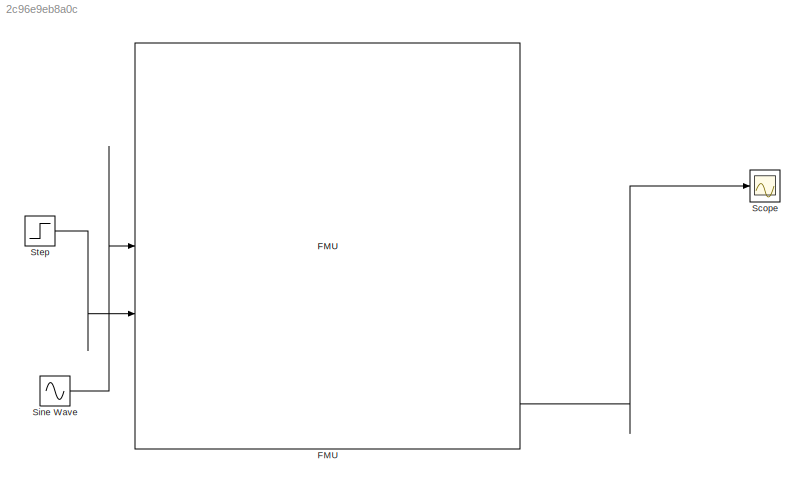
MODEL slx_2c96e9eb8a0c
KIND model
CONFIG AbsTol = auto
CONFIG EnableMultiTasking = off
CONFIG FixedStep = auto
CONFIG MaxStep = auto
CONFIG MinStep = auto
CONFIG RelTol = 1e-3
CONFIG SampleTimeConstraint = Unconstrained
CONFIG SolverName = VariableStepAuto
CONFIG StartTime = 0.0
CONFIG StopTime = 10.0
BLOCK [FMU] FMU
  FMUCachedDialogLayout = {"Geometry":[637,302,440,418],"ParameterColumnsWidthConfig":"{\"columns\":[{\"name\":\"Parameter\",\"width\":146},{\"name\":\"Value\",\"width\":110},{\"name\":\"Unit\",\"width\":100},{\"name\":\"Description\",\"width\":153}]}","InputColumnsWidthConfig":[],"OutputColumnsWidthConfig":[]}
  FMUInitializeEnumObject = off
  FMUMode = ModelExchange
  FMUName = ThreeWheelVehicleNoDiffFMU.fmu
  MaskDisplay = disp('ThreeWheelVehicleNoDiffFMU');\nport_label('output',1,'outActualSteeringAngle');\nport_label('output',2,'outCarAcc');\nport_label('output',3,'outCarAngle');\nport_label('output',4,'outCarAngularAcc');\nport_label('output',5,'outCarAngularVelocity');\nport_label('output',6,'outCarDistance');\nport_label('output',7,'outCarPosition');\nport_label('output',8,'outCarSpeed');\nport_label('output',9,'outCarV...<+894ch>
  MaskPromptString = airResistanceLongitudinal|backLengthm|body2|c_rollRolling resistance|dragCoefAir drag coefficient|front|front2|frontLengthm|frontTrail|frontWheel|gm/s2 Gravity|gearRatio|inertiaBodykgm2|inertiaWheel|masskg|massCenterZm height to COM|muA|muS|neg|neg2|planarWorld|positionPhi|rear|rearLeft|rearLeftWheel|rearRight|rearRightWheel|sAd|sSl|speedStartm/s|turnRadiusMAX|vAd|vSl|vehicleFrontAream2, for air r...<+2558ch>
  MaskType = ThreeWheelVehicleNoDiffFMU [Model Exchange, v2.0]
  MultithreadedSim = off
  airResistanceLongitudinal = struct('r',[0.0,1.0],'rho',1.18)
  backLength = 0.5
  body2 = struct('I',1e-08,'m',0.1)
  body2_sphere_shapeType = sphere
  body_sphere_shapeType = sphere
  c_roll = 0.05
  dragCoef = 0.5
  front = struct('r',[0.0],'width',0.2)
  front2 = struct('r',[1e-10,0.0])
  front2_cylinder_shapeType = cylinder
  frontLength = 1.5
  frontTrail = struct('r',[0.0])
  frontTrail_cylinder_shapeType = cylinder
  frontWheel = struct('diameter',0.1,'r',[0.0,1.0],'v0_roll',0.1)
  frontWheel_cylinder_shapeType = cylinder
  frontWheel_rim1_shapeType = cylinder
  frontWheel_rim2_shapeType = cylinder
  front_cylinder_shapeType = cylinder
  g = 9.82
  gearRatio = 0.125
  inertiaBody = 350.0
  inertiaWheel = 0.3
  mass = 350.0
  massCenterZ = 0.3
  muA = 1.0
  muS = 0.7
  neg = struct('k',-1.0)
  neg2 = struct('k',-1.0)
  planarWorld = struct('constantGravity',[0.0,0.0],'defaultFrameDiameterFraction',40.0,'defaultN_to_m',1000.0,'defaultNm_to_m',1000.0,'defaultSpecularCoefficient',0.7,'defaultWidthFraction',20.0,'defaultZPosition',0.0,'gravityArrowTail',[0.0,0.0],'nominalLength',1.0)
  planarWorld_label1 = x
  planarWorld_label2 = y
  positionPhi = struct('f_crit',50.0)
  rear = struct('r',[0.0],'width',0.2)
  rearLeft = struct('r',[0,0.0])
  rearLeftWheel = struct('diameter',0.1,'r',[0.0,1.0],'v0_roll',0.1)
  rearLeftWheel_cylinder_shapeType = cylinder
  rearLeftWheel_rim1_shapeType = cylinder
  rearLeftWheel_rim2_shapeType = cylinder
  rearLeft_cylinder_shapeType = cylinder
  rearRight = struct('r',[0,0.0])
  rearRightWheel = struct('diameter',0.1,'r',[0.0,1.0],'v0_roll',0.1)
  rearRightWheel_cylinder_shapeType = cylinder
  rearRightWheel_rim1_shapeType = cylinder
  rearRightWheel_rim2_shapeType = cylinder
  rearRight_cylinder_shapeType = cylinder
  rear_cylinder_shapeType = cylinder
  revolute_cylinder_shapeType = cylinder
  sAd = 0.07000000000000001
  sSl = 0.2
  speedStart = 11.11111111111111
  turnRadiusMAX = 500.0
  vAd = 0.1
  vSl = 0.3
  vehicleFrontArea = 1.5
  vehicleWidth = 1.0
  wheelRadius = 0.28
BLOCK [Scope] Scope
  Floating = off
  NumInputPorts = 1
  ScopeSpecificationString = Simulink.scopes.TimeScopeBlockCfg('CurrentConfiguration', extmgr.ConfigurationSet(extmgr.Configuration('Core','General UI',true),extmgr.Configuration('Core','Source UI',true),extmgr.Configuration('Sources','WiredSimulink',true),extmgr.Configuration('Visuals','Time Domain',true,'SerializedDisplays',{struct('MinYLimReal','5.28575','MaxYLimReal','11.75837','YLabelReal','','MinYLimMag','5.28575','MaxY...<+1327ch>
BLOCK [Sin] Sine Wave
  Amplitude = 20/180*pi
  Frequency = .2
  SampleTime = 0
BLOCK [Step] Step
  After = 20
  Before = 20
  SampleTime = 0
  Time = 0
LINE FMU:8 -> Scope:1
LINE Sine Wave:1 -> FMU:1
LINE Step:1 -> FMU:2
